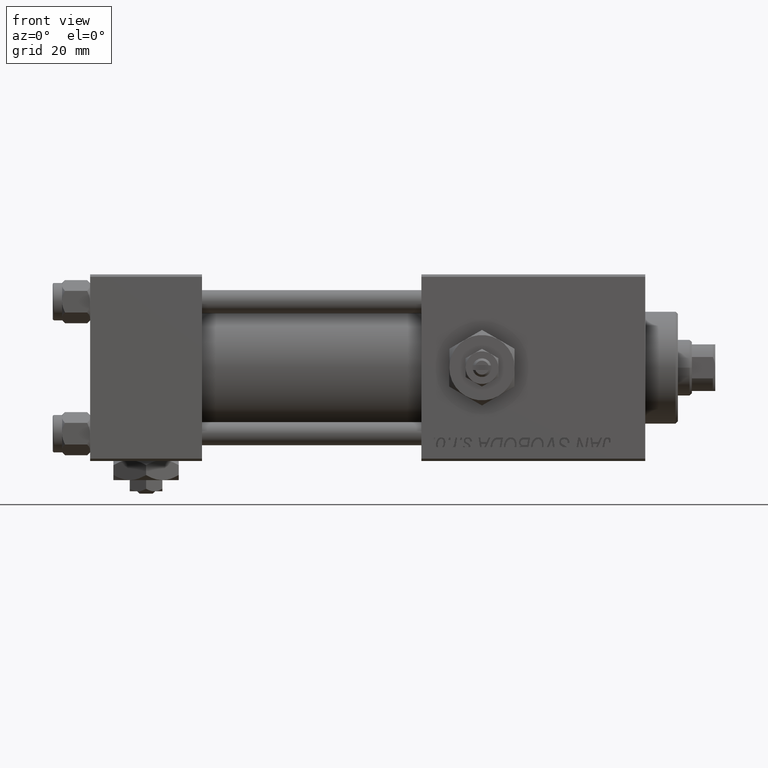
[diagram: clean part render]
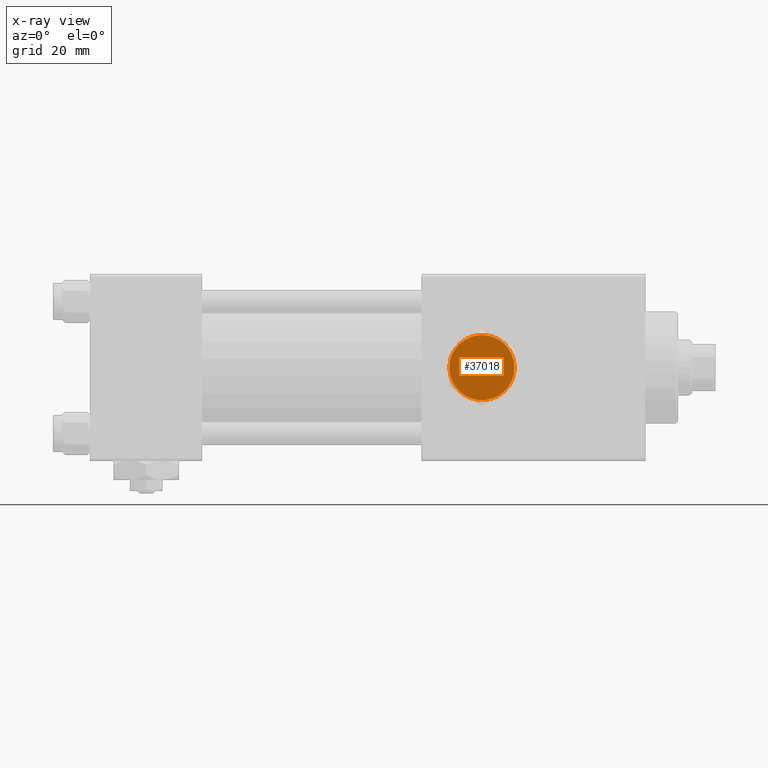
[diagram: x-ray — body ghosted, one internal face saturated and labeled with its STEP entity id]
A machine part, front view, then the same camera in x-ray: the body is ghosted and one INTERNAL B-rep face — a face not visible from any outside direction — is saturated and labeled: STEP entity #37018.
In plain terms, the highlighted planar face has unit normal (0, -1, -0).
Its self-contained STEP definition (entity closure, byte-faithful):
#717 = CARTESIAN_POINT ( 'NONE',  ( 6.999999999999994671, 3.004629197474313724E-15, 0.000000000000000000 ) ) ;
#888 = DIRECTION ( 'NONE',  ( 1.000000000000000000, 0.000000000000000000, 0.000000000000000000 ) ) ;
#1413 = CARTESIAN_POINT ( 'NONE',  ( 0.000000000000000000, 0.000000000000000000, 0.000000000000000000 ) ) ;
#2821 = DIRECTION ( 'NONE',  ( 1.000000000000000000, 0.000000000000000000, 0.000000000000000000 ) ) ;
#3342 = CARTESIAN_POINT ( 'NONE',  ( 0.000000000000000000, 0.000000000000000000, 0.000000000000000000 ) ) ;
#5584 = CARTESIAN_POINT ( 'NONE',  ( 0.000000000000000000, 0.000000000000000000, 0.000000000000000000 ) ) ;
#5949 = CARTESIAN_POINT ( 'NONE',  ( -3.499999999999996891, -6.062177826491067734, 0.000000000000000000 ) ) ;
#6225 = CARTESIAN_POINT ( 'NONE',  ( 0.000000000000000000, 0.000000000000000000, 0.000000000000000000 ) ) ;
#7025 = EDGE_CURVE ( 'NONE', #44340, #27464, #30785, .T. ) ;
#7452 = AXIS2_PLACEMENT_3D ( 'NONE', #6225, #22371, #38503 ) ;
#7809 = CIRCLE ( 'NONE', #32308, 6.999999999999995559 ) ;
#8292 = CIRCLE ( 'NONE', #7452, 6.999999999999995559 ) ;
#12530 = DIRECTION ( 'NONE',  ( -1.000000000000000000, 0.000000000000000000, 0.000000000000000000 ) ) ;
#14268 = EDGE_CURVE ( 'NONE', #41398, #42954, #30208, .T. ) ;
#16248 = AXIS2_PLACEMENT_3D ( 'NONE', #1413, #41630, #888 ) ;
#17090 = CIRCLE ( 'NONE', #16248, 6.999999999999995559 ) ;
#17679 = ORIENTED_EDGE ( 'NONE', *, *, #35038, .T. ) ;
#17756 = CARTESIAN_POINT ( 'NONE',  ( 3.499999999999998224, -6.062177826491068622, 0.000000000000000000 ) ) ;
#20081 = AXIS2_PLACEMENT_3D ( 'NONE', #3342, #35106, #47793 ) ;
#20995 = CARTESIAN_POINT ( 'NONE',  ( 0.000000000000000000, 0.000000000000000000, 0.000000000000000000 ) ) ;
#22371 = DIRECTION ( 'NONE',  ( 0.000000000000000000, 0.000000000000000000, 1.000000000000000000 ) ) ;
#22408 = CARTESIAN_POINT ( 'NONE',  ( 0.000000000000000000, 0.000000000000000000, 0.000000000000000000 ) ) ;
#23936 = EDGE_LOOP ( 'NONE', ( #44984, #35955, #37861, #50492, #17679, #38587 ) ) ;
#24205 = DIRECTION ( 'NONE',  ( 0.000000000000000000, 0.000000000000000000, 1.000000000000000000 ) ) ;
#27464 = VERTEX_POINT ( 'NONE', #17756 ) ;
#29003 = EDGE_CURVE ( 'NONE', #27464, #41398, #7809, .T. ) ;
#29190 = DIRECTION ( 'NONE',  ( 0.000000000000000000, 0.000000000000000000, -1.000000000000000000 ) ) ;
#30129 = CARTESIAN_POINT ( 'NONE',  ( -6.999999999999995559, -2.253471898105737068E-15, 0.000000000000000000 ) ) ;
#30208 = CIRCLE ( 'NONE', #20081, 6.999999999999995559 ) ;
#30785 = CIRCLE ( 'NONE', #40072, 6.999999999999995559 ) ;
#31735 = VERTEX_POINT ( 'NONE', #30129 ) ;
#32308 = AXIS2_PLACEMENT_3D ( 'NONE', #22408, #38798, #2821 ) ;
#33855 = VERTEX_POINT ( 'NONE', #45693 ) ;
#33889 = DIRECTION ( 'NONE',  ( 1.000000000000000000, 0.000000000000000000, 0.000000000000000000 ) ) ;
#34921 = EDGE_CURVE ( 'NONE', #42954, #33855, #8292, .T. ) ;
#35038 = EDGE_CURVE ( 'NONE', #31735, #33855, #39560, .T. ) ;
#35106 = DIRECTION ( 'NONE',  ( 0.000000000000000000, 0.000000000000000000, 1.000000000000000000 ) ) ;
#35955 = ORIENTED_EDGE ( 'NONE', *, *, #29003, .F. ) ;
#36112 = PLANE ( 'NONE',  #38766 ) ;
#37018 = ADVANCED_FACE ( 'NONE', ( #45364 ), #36112, .F. ) ;
#37861 = ORIENTED_EDGE ( 'NONE', *, *, #7025, .F. ) ;
#38503 = DIRECTION ( 'NONE',  ( 1.000000000000000000, 0.000000000000000000, 0.000000000000000000 ) ) ;
#38587 = ORIENTED_EDGE ( 'NONE', *, *, #34921, .F. ) ;
#38766 = AXIS2_PLACEMENT_3D ( 'NONE', #49343, #24205, #44575 ) ;
#38798 = DIRECTION ( 'NONE',  ( 0.000000000000000000, 0.000000000000000000, 1.000000000000000000 ) ) ;
#39560 = CIRCLE ( 'NONE', #46331, 6.999999999999995559 ) ;
#40072 = AXIS2_PLACEMENT_3D ( 'NONE', #5584, #46334, #33889 ) ;
#41398 = VERTEX_POINT ( 'NONE', #717 ) ;
#41630 = DIRECTION ( 'NONE',  ( 0.000000000000000000, 0.000000000000000000, 1.000000000000000000 ) ) ;
#42954 = VERTEX_POINT ( 'NONE', #48750 ) ;
#44340 = VERTEX_POINT ( 'NONE', #5949 ) ;
#44575 = DIRECTION ( 'NONE',  ( 1.000000000000000000, 0.000000000000000000, -0.000000000000000000 ) ) ;
#44601 = EDGE_CURVE ( 'NONE', #31735, #44340, #17090, .T. ) ;
#44984 = ORIENTED_EDGE ( 'NONE', *, *, #14268, .F. ) ;
#45364 = FACE_OUTER_BOUND ( 'NONE', #23936, .T. ) ;
#45693 = CARTESIAN_POINT ( 'NONE',  ( -3.499999999999997335, 6.062177826491066845, 0.000000000000000000 ) ) ;
#46331 = AXIS2_PLACEMENT_3D ( 'NONE', #20995, #29190, #12530 ) ;
#46334 = DIRECTION ( 'NONE',  ( 0.000000000000000000, 0.000000000000000000, 1.000000000000000000 ) ) ;
#47793 = DIRECTION ( 'NONE',  ( 1.000000000000000000, 0.000000000000000000, 0.000000000000000000 ) ) ;
#48750 = CARTESIAN_POINT ( 'NONE',  ( 3.499999999999998224, 6.062177826491068622, 0.000000000000000000 ) ) ;
#49343 = CARTESIAN_POINT ( 'NONE',  ( 0.000000000000000000, 0.000000000000000000, 0.000000000000000000 ) ) ;
#50492 = ORIENTED_EDGE ( 'NONE', *, *, #44601, .F. ) ;